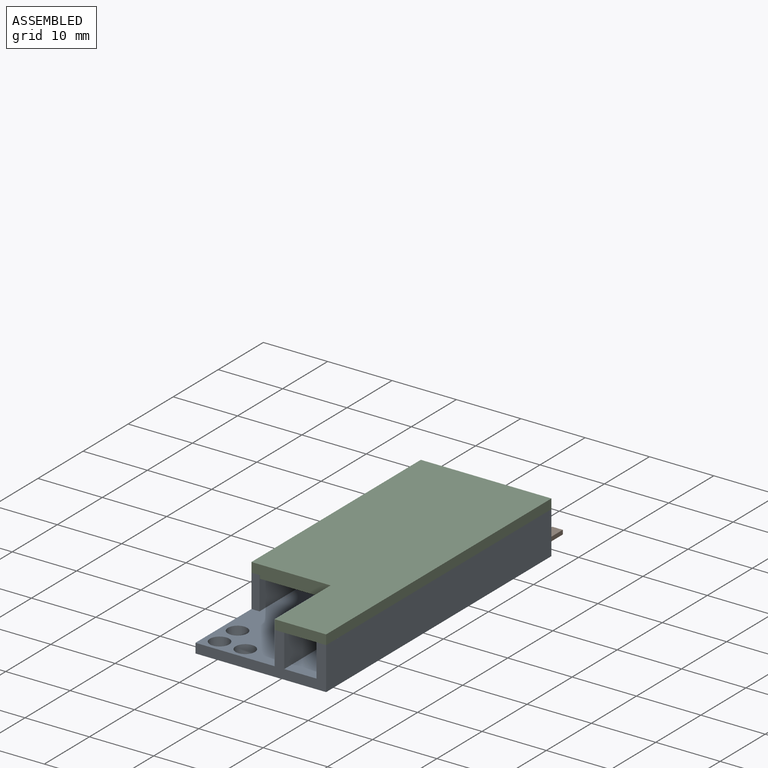
[diagram: assembled view]
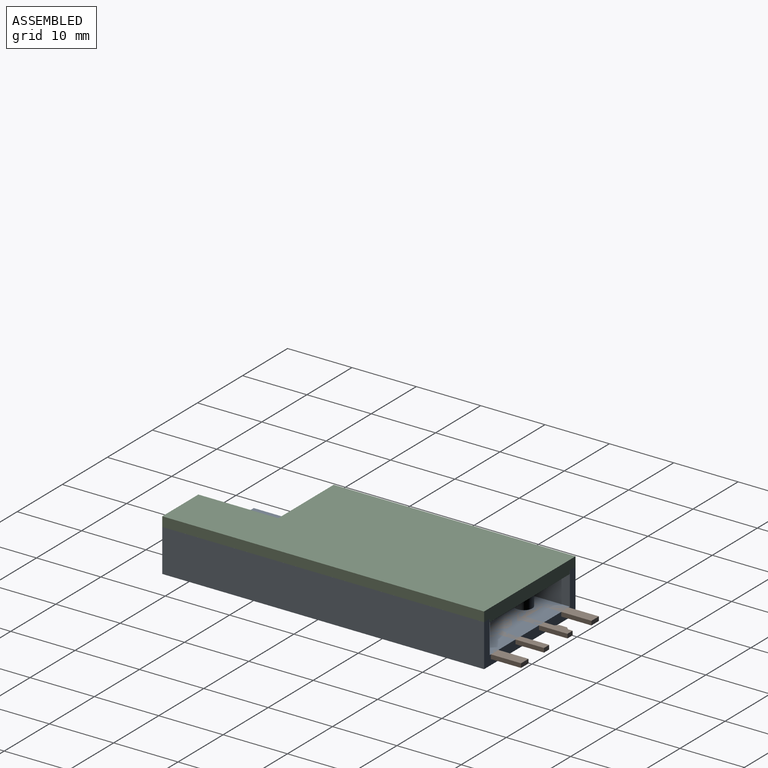
[diagram: assembled view, second angle]
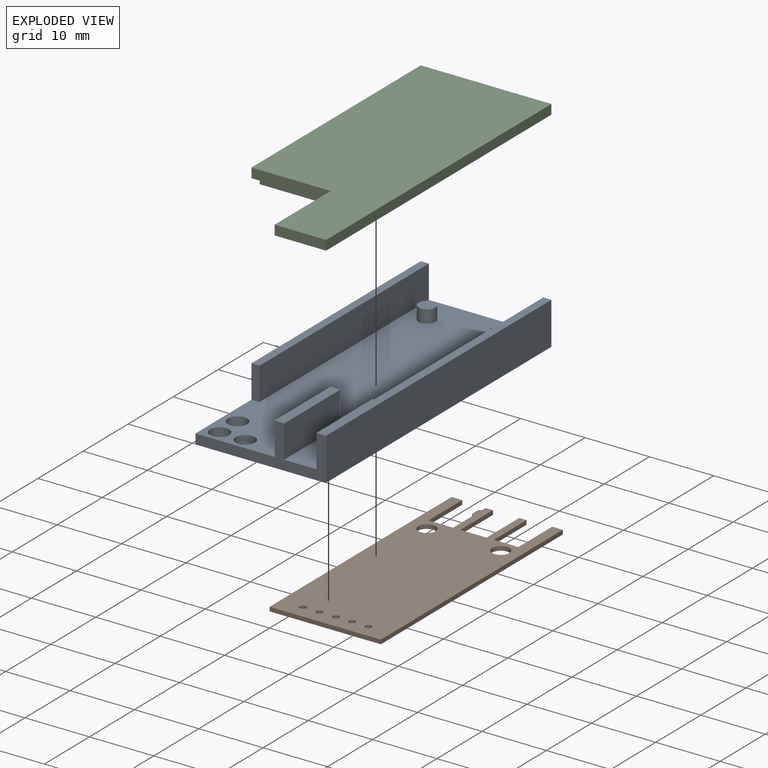
[diagram: exploded view]
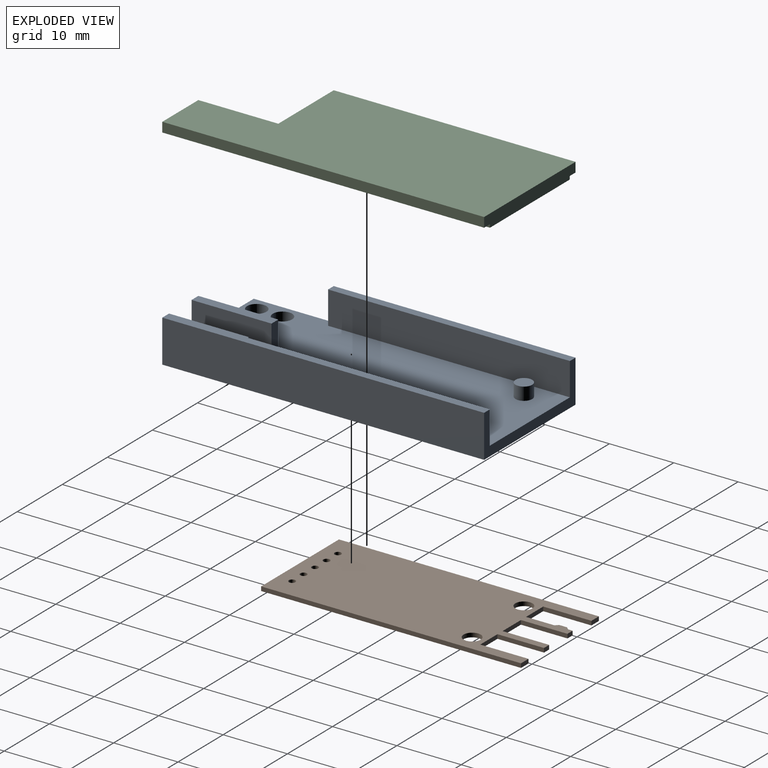
[diagram: exploded view, second angle]
ASSEMBLY  parts=3 mates=2
PART A: 24 faces, bbox 20.3x50x6.6 mm
  f0: plane 50x19.05mm, normal (0,0,1), area 852mm2, adj f2,f3,f5,f7,f9,f10,f11,f12
  f1: plane 50x6.6mm, normal (1,0,0), area 330mm2, adj f2,f4,f9,f17
  f2: plane 20.3x6.6mm, normal (0,1,0), area 43.2mm2, adj f0,f1,f3,f4,f14,f15,f16,f17
  f3: plane 50x6.6mm, normal (-1,0,0), area 266.6mm2, adj f0,f2,f4,f9,f13,f15
  f4: plane 50x20.3mm, normal (0,0,-1), area 993.8mm2, adj f1,f2,f3,f9,f10,f11,f12
  f5: cylinder r=1.3mm len=2.6mm, axis (0,0,-1), area 16.3mm2, adj f0,f6
  f6: plane 2.6x2.6mm, normal (0,0,1), area 5.3mm2, adj f5
  f7: cylinder r=1.3mm len=2.6mm, axis (0,0,-1), area 16.3mm2, adj f0,f8
  f8: plane 2.6x2.6mm, normal (0,0,1), area 5.3mm2, adj f7
  f9: plane 20.3x6.6mm, normal (0,-1,0), area 45.8mm2, adj f0,f1,f3,f4,f17,f19,f20,f22
  f10: cylinder r=1.5mm len=3mm, axis (0,0,1), area 14.1mm2, adj f0,f4
  f11: cylinder r=1.5mm len=3mm, axis (0,0,1), area 14.1mm2, adj f0,f4
  f12: cylinder r=1.5mm len=3mm, axis (0,0,1), area 14.1mm2, adj f0,f4
  f13: plane 5.1x1.25mm, normal (0,-1,0), area 6.4mm2, adj f0,f3,f14,f15
  f14: plane 37.58x5.1mm, normal (1,0,0), area 191.6mm2, adj f0,f2,f13,f15
  f15: plane 37.58x1.25mm, normal (0,0,1), area 47mm2, adj f2,f3,f13,f14
  f16: plane 37.58x5.1mm, normal (-1,0,0), area 191.6mm2, adj f0,f2,f17,f18
  f17: plane 50x1.5mm, normal (0,0,1), area 65.6mm2, adj f1,f2,f9,f16,f18,f19
  f18: plane 5.1x0.25mm, normal (0,1,0), area 1.3mm2, adj f0,f16,f17,f19
  f19: plane 12.42x5.1mm, normal (-1,0,0), area 63.4mm2, adj f0,f9,f17,f18
  f20: plane 12.42x5.1mm, normal (1,0,0), area 63.4mm2, adj f0,f9,f21,f23
  f21: plane 5.1x1.5mm, normal (0,1,0), area 7.6mm2, adj f0,f20,f22,f23
  f22: plane 12.42x5.1mm, normal (-1,0,0), area 63.4mm2, adj f0,f9,f21,f23
  f23: plane 12.42x1.5mm, normal (0,0,1), area 18.6mm2, adj f9,f20,f21,f22
PART B: 29 faces, bbox 17.3x0.7x40.4 mm
  f0: plane 40.39x0.65mm, normal (-1,0,0), area 26.3mm2, adj f1,f25,f27,f28
  f1: plane 17.27x0.65mm, normal (0,0,-1), area 11.2mm2, adj f0,f2,f27,f28
  f2: plane 40.39x0.65mm, normal (1,0,0), area 26.3mm2, adj f1,f3,f27,f28
  f3: plane 1.65x0.65mm, normal (0,0,1), area 1.1mm2, adj f2,f4,f27,f28
  f4: plane 7.49x0.65mm, normal (-1,0,0), area 4.9mm2, adj f3,f5,f27,f28
  f5: plane 3.81x0.65mm, normal (0,0,1), area 2.5mm2, adj f4,f6,f27,f28
  f6: plane 7.24x0.65mm, normal (1,0,0), area 4.7mm2, adj f5,f7,f27,f28
  f7: plane 1.14x0.65mm, normal (0,0,1), area 0.7mm2, adj f6,f8,f27,f28
  f8: plane 7.24x0.65mm, normal (-1,0,0), area 4.7mm2, adj f7,f9,f27,f28
  f9: plane 4.06x0.65mm, normal (0,0,1), area 2.6mm2, adj f8,f10,f27,f28
  f10: plane 7.24x0.65mm, normal (1,0,0), area 4.7mm2, adj f9,f11,f27,f28
  f11: plane 1.14x0.65mm, normal (0,0,1), area 0.7mm2, adj f10,f12,f27,f28
  f12: plane 0.71x0.65mm, normal (-1,0,0), area 0.5mm2, adj f11,f13,f27,f28
  f13: plane 0.65x0.46mm, normal (-0.73,0,0.69), area 0.4mm2, adj f12,f14,f27,f28
  f14: plane 1.22x0.65mm, normal (-1,0,0), area 0.8mm2, adj f13,f15,f27,f28
  f15: plane 0.65x0.46mm, normal (-0.73,0,-0.69), area 0.4mm2, adj f14,f16,f27,f28
  f16: plane 4.39x0.65mm, normal (-1,0,0), area 2.9mm2, adj f15,f17,f27,f28
  f17: plane 3.81x0.65mm, normal (0,0,1), area 2.5mm2, adj f16,f18,f27,f28
  f18: plane 7.49x0.65mm, normal (1,0,0), area 4.9mm2, adj f17,f25,f27,f28
  f19: cylinder r=0.51mm len=1.02mm, axis (0,1,0), area 2.1mm2, adj f27,f28
  f20: cylinder r=0.51mm len=1.02mm, axis (0,1,0), area 2.1mm2, adj f27,f28
  f21: cylinder r=0.51mm len=1.02mm, axis (0,1,0), area 2.1mm2, adj f27,f28
  f22: cylinder r=0.51mm len=1.02mm, axis (0,1,0), area 2.1mm2, adj f27,f28
  f23: cylinder r=0.51mm len=1.02mm, axis (0,1,0), area 2.1mm2, adj f27,f28
  f24: cylinder r=1.33mm len=2.67mm, axis (0,1,0), area 5.4mm2, adj f27,f28
  f25: plane 1.65x0.65mm, normal (0,0,1), area 1.1mm2, adj f0,f18,f27,f28
  f26: cylinder r=1.33mm len=2.67mm, axis (0,1,0), area 5.4mm2, adj f27,f28
  f27: plane 40.39x17.27mm, normal (0,-1,0), area 594.9mm2, adj f0,f1,f2,f3,f4,f5,f6,f7
  f28: plane 40.39x17.27mm, normal (0,1,0), area 594.9mm2, adj f0,f1,f2,f3,f4,f5,f6,f7
PART C: 12 faces, bbox 20.3x50x2 mm
  f0: plane 37.58x0.5mm, normal (-1,0,0), area 18.8mm2, adj f4,f5,f10,f11
  f1: plane 12.42x1.5mm, normal (1,0,0), area 18.6mm2, adj f3,f4,f8,f11
  f2: plane 37.58x1.5mm, normal (1,0,0), area 56.4mm2, adj f5,f7,f8,f11
  f3: plane 8x1.5mm, normal (0,-1,0), area 12mm2, adj f1,f4,f6,f8
  f4: plane 50x8mm, normal (0,0,1), area 148.2mm2, adj f0,f1,f3,f5,f6,f11
  f5: plane 20.3x2mm, normal (0,1,0), area 39.3mm2, adj f0,f2,f4,f6,f7,f8,f9,f10
  f6: plane 50x1.5mm, normal (-1,0,0), area 75mm2, adj f3,f4,f5,f8
  f7: plane 37.58x1.3mm, normal (0,0,1), area 48.8mm2, adj f2,f5,f9,f11
  f8: plane 50x20.3mm, normal (0,0,-1), area 862.2mm2, adj f1,f2,f3,f5,f6,f11
  f9: plane 37.58x0.5mm, normal (1,0,0), area 18.8mm2, adj f5,f7,f10,f11
  f10: plane 37.58x17.7mm, normal (0,0,1), area 665.1mm2, adj f0,f5,f9,f11
  f11: plane 19x2mm, normal (0,-1,0), area 27.3mm2, adj f0,f1,f2,f4,f7,f8,f9,f10
PLACE A t=(-8.07,1.01,-5.83)mm
PLACE B rot(axis=(-1,0,0),90deg) t=(-2.45,5.5,-4.98)mm
PLACE C rot(axis=(0,1,0),180deg) t=(-8.07,-3.99,2.27)mm
MATE fastened C.f4 <-> A.f17  axis (0,0,-1) through (2.08,-3.99,0.77)mm
MATE fastened B.f24 <-> A.f7  axis (0,0,1) through (-2.33,16.07,-4.33)mm
